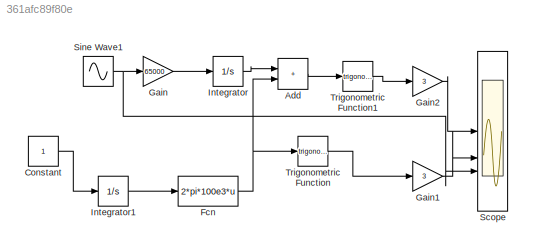
MODEL slx_361afc89f80e
KIND model
CONFIG AbsTol = auto
CONFIG EnableMultiTasking = off
CONFIG FixedStep = 0.000001
CONFIG MaxStep = auto
CONFIG MinStep = auto
CONFIG RelTol = 1e-3
CONFIG SampleTimeConstraint = Unconstrained
CONFIG SolverName = FixedStepAuto
CONFIG StartTime = 0.0
CONFIG StopTime = 0.003
BLOCK [Sum] Add
  IconShape = rectangular
BLOCK [Constant] Constant
BLOCK [Fcn] Fcn
  Expr = 2*pi*100e3*u
BLOCK [Gain] Gain
  Gain = 65000
BLOCK [Gain] Gain1
  Gain = 3
BLOCK [Gain] Gain2
  Gain = 3
BLOCK [Integrator] Integrator
BLOCK [Integrator] Integrator1
BLOCK [Scope] Scope
  Floating = off
  NumInputPorts = 3
  ScopeSpecificationString = Simulink.scopes.TimeScopeBlockCfg('CurrentConfiguration', extmgr.ConfigurationSet(extmgr.Configuration('Core','General UI',true),extmgr.Configuration('Core','Source UI',true),extmgr.Configuration('Sources','WiredSimulink',true),extmgr.Configuration('Visuals','Time Domain',true,'SerializedDisplays',{struct('MinYLimReal','-0.80486','MaxYLimReal','-0.73759','YLabelReal','','MinYLimMag','0.00000','Max...<+3028ch>
BLOCK [Sin] Sine Wave1
  Amplitude = 3
  Frequency = 2*pi*4000
  SampleTime = 0.000001
BLOCK [Trigonometry] Trigonometric Function
BLOCK [Trigonometry] Trigonometric Function1
LINE Add:1 -> Trigonometric Function1:1
LINE Constant:1 -> Integrator1:1
NET Fcn:1 -> Add:2, Trigonometric Function:1
LINE Gain1:1 -> Scope:2
LINE Gain2:1 -> Scope:1
LINE Gain:1 -> Integrator:1
LINE Integrator1:1 -> Fcn:1
LINE Integrator:1 -> Add:1
NET Sine Wave1:1 -> Gain:1, Scope:3
LINE Trigonometric Function1:1 -> Gain2:1
LINE Trigonometric Function:1 -> Gain1:1
note: NET lines group one-source signal fan-out (src -> all destinations, sorted); 1:1 wires keep LINE
